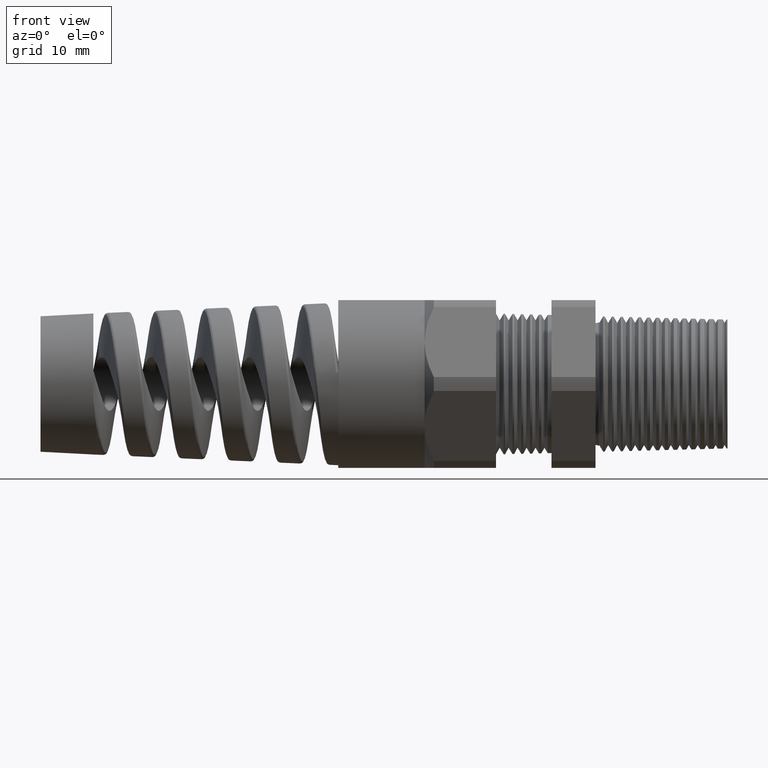
[diagram: clean part render]
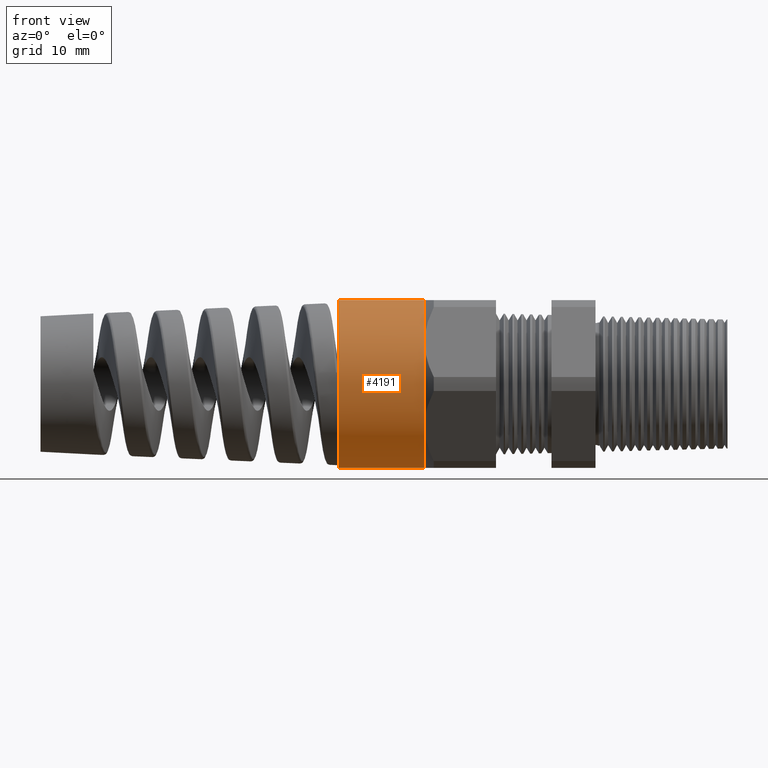
[diagram: same view with one face highlighted and labeled with its STEP entity id]
A machine part, front view. The second image highlights one B-rep face of the part: STEP entity #4191.
In plain terms, the highlighted cylindrical surface (partial cylindrical patch) has radius 9.525 mm, axis along (1, 0, 0).
Its self-contained STEP definition (entity closure, byte-faithful):
#112 = VERTEX_POINT ( 'NONE', #1170 ) ;
#123 = VERTEX_POINT ( 'NONE', #1212 ) ;
#1170 = CARTESIAN_POINT ( 'NONE',  ( -1.073700787401574700, -0.3247595264191644500, -0.1874999999999999700 ) ) ;
#1212 = CARTESIAN_POINT ( 'NONE',  ( -1.073700787401574700, -0.3247595264191645600, 0.1875000000000000300 ) ) ;
#3238 = DIRECTION ( 'NONE',  ( 0.0000000000000000000, 0.0000000000000000000, -1.000000000000000000 ) ) ;
#3239 = DIRECTION ( 'NONE',  ( 1.000000000000000000, 0.0000000000000000000, 0.0000000000000000000 ) ) ;
#3240 = CARTESIAN_POINT ( 'NONE',  ( -1.073700787401574700, 0.0000000000000000000, 0.0000000000000000000 ) ) ;
#3241 = AXIS2_PLACEMENT_3D ( 'NONE', #3240, #3239, #3238 ) ;
#3242 = CIRCLE ( 'NONE', #3241, 0.3749999999999999400 ) ;
#3267 = DIRECTION ( 'NONE',  ( 0.0000000000000000000, 0.0000000000000000000, -1.000000000000000000 ) ) ;
#3268 = DIRECTION ( 'NONE',  ( 1.000000000000000000, 0.0000000000000000000, 0.0000000000000000000 ) ) ;
#3269 = CARTESIAN_POINT ( 'NONE',  ( 1.326736918405036800, 0.0000000000000000000, 0.0000000000000000000 ) ) ;
#3270 = AXIS2_PLACEMENT_3D ( 'NONE', #3269, #3268, #3267 ) ;
#3272 = CYLINDRICAL_SURFACE ( 'NONE', #3270, 0.3749999999999999400 ) ;
#3273 = FACE_OUTER_BOUND ( 'NONE', #4176, .T. ) ;
#3274 = DIRECTION ( 'NONE',  ( 0.0000000000000000000, 0.0000000000000000000, 1.000000000000000000 ) ) ;
#3275 = DIRECTION ( 'NONE',  ( -1.000000000000000000, 0.0000000000000000000, 0.0000000000000000000 ) ) ;
#3276 = CARTESIAN_POINT ( 'NONE',  ( -1.459240900258163400, 0.0000000000000000000, 0.0000000000000000000 ) ) ;
#3277 = AXIS2_PLACEMENT_3D ( 'NONE', #3276, #3275, #3274 ) ;
#3278 = CIRCLE ( 'NONE', #3277, 0.3749999999999999400 ) ;
#3284 = DIRECTION ( 'NONE',  ( 0.0000000000000000000, 0.0000000000000000000, -1.000000000000000000 ) ) ;
#3285 = DIRECTION ( 'NONE',  ( 1.000000000000000000, 0.0000000000000000000, 0.0000000000000000000 ) ) ;
#3286 = CARTESIAN_POINT ( 'NONE',  ( -1.073700787401574700, 0.0000000000000000000, 0.0000000000000000000 ) ) ;
#3287 = AXIS2_PLACEMENT_3D ( 'NONE', #3286, #3285, #3284 ) ;
#3288 = CIRCLE ( 'NONE', #3287, 0.3749999999999999400 ) ;
#3292 = DIRECTION ( 'NONE',  ( 0.0000000000000000000, 0.0000000000000000000, -1.000000000000000000 ) ) ;
#3293 = DIRECTION ( 'NONE',  ( 1.000000000000000000, 0.0000000000000000000, 0.0000000000000000000 ) ) ;
#3294 = CARTESIAN_POINT ( 'NONE',  ( -1.073700787401574700, 0.0000000000000000000, 0.0000000000000000000 ) ) ;
#3295 = AXIS2_PLACEMENT_3D ( 'NONE', #3294, #3293, #3292 ) ;
#3296 = CIRCLE ( 'NONE', #3295, 0.3749999999999999400 ) ;
#3648 = DIRECTION ( 'NONE',  ( 1.000000000000000000, 0.0000000000000000000, 0.0000000000000000000 ) ) ;
#3649 = VECTOR ( 'NONE', #3648, 39.37007874015748100 ) ;
#3650 = CARTESIAN_POINT ( 'NONE',  ( 1.326736918405036800, 0.0000000000000000000, -0.3749999999999999400 ) ) ;
#3651 = LINE ( 'NONE', #3650, #3649 ) ;
#4174 = ORIENTED_EDGE ( 'NONE', *, *, #4392, .T. ) ;
#4175 = ORIENTED_EDGE ( 'NONE', *, *, #4180, .F. ) ;
#4176 = EDGE_LOOP ( 'NONE', ( #4188, #4189, #4174, #4185, #4175, #4210 ) ) ;
#4180 = EDGE_CURVE ( 'NONE', #123, #112, #3242, .T. ) ;
#4184 = EDGE_CURVE ( 'NONE', #112, #10651, #3288, .T. ) ;
#4185 = ORIENTED_EDGE ( 'NONE', *, *, #4184, .F. ) ;
#4188 = ORIENTED_EDGE ( 'NONE', *, *, #10706, .F. ) ;
#4189 = ORIENTED_EDGE ( 'NONE', *, *, #4190, .F. ) ;
#4190 = EDGE_CURVE ( 'NONE', #10674, #10694, #3278, .T. ) ;
#4191 = ADVANCED_FACE ( 'NONE', ( #3273 ), #3272, .T. ) ;
#4210 = ORIENTED_EDGE ( 'NONE', *, *, #4212, .F. ) ;
#4212 = EDGE_CURVE ( 'NONE', #10701, #123, #3296, .T. ) ;
#4392 = EDGE_CURVE ( 'NONE', #10674, #10651, #3651, .T. ) ;
#5041 = DIRECTION ( 'NONE',  ( 1.000000000000000000, 0.0000000000000000000, 0.0000000000000000000 ) ) ;
#5042 = VECTOR ( 'NONE', #5041, 39.37007874015748100 ) ;
#5043 = CARTESIAN_POINT ( 'NONE',  ( 1.326736918405036800, 4.592425496802573600E-017, 0.3749999999999999400 ) ) ;
#5044 = LINE ( 'NONE', #5043, #5042 ) ;
#5055 = CARTESIAN_POINT ( 'NONE',  ( -1.073700787401574700, 0.0000000000000000000, 0.3749999999999999400 ) ) ;
#5067 = CARTESIAN_POINT ( 'NONE',  ( -1.459240900258163400, 4.592425496802573600E-017, 0.3749999999999999400 ) ) ;
#5107 = CARTESIAN_POINT ( 'NONE',  ( -1.459240900258163400, 0.0000000000000000000, -0.3749999999999999400 ) ) ;
#5148 = CARTESIAN_POINT ( 'NONE',  ( -1.073700787401574700, 0.0000000000000000000, -0.3750000000000001100 ) ) ;
#10651 = VERTEX_POINT ( 'NONE', #5148 ) ;
#10674 = VERTEX_POINT ( 'NONE', #5107 ) ;
#10694 = VERTEX_POINT ( 'NONE', #5067 ) ;
#10701 = VERTEX_POINT ( 'NONE', #5055 ) ;
#10706 = EDGE_CURVE ( 'NONE', #10694, #10701, #5044, .T. ) ;